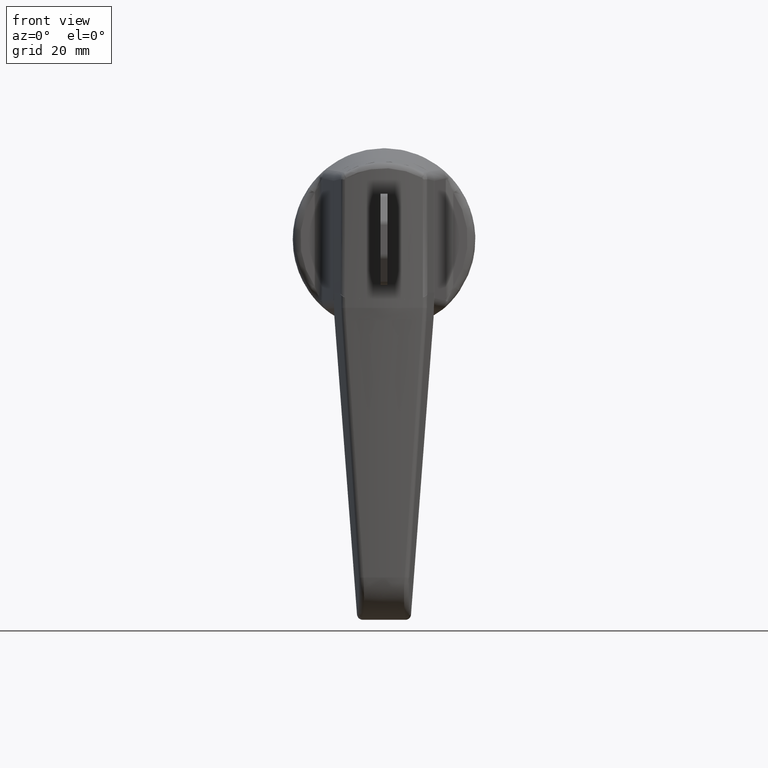
[diagram: clean part render]
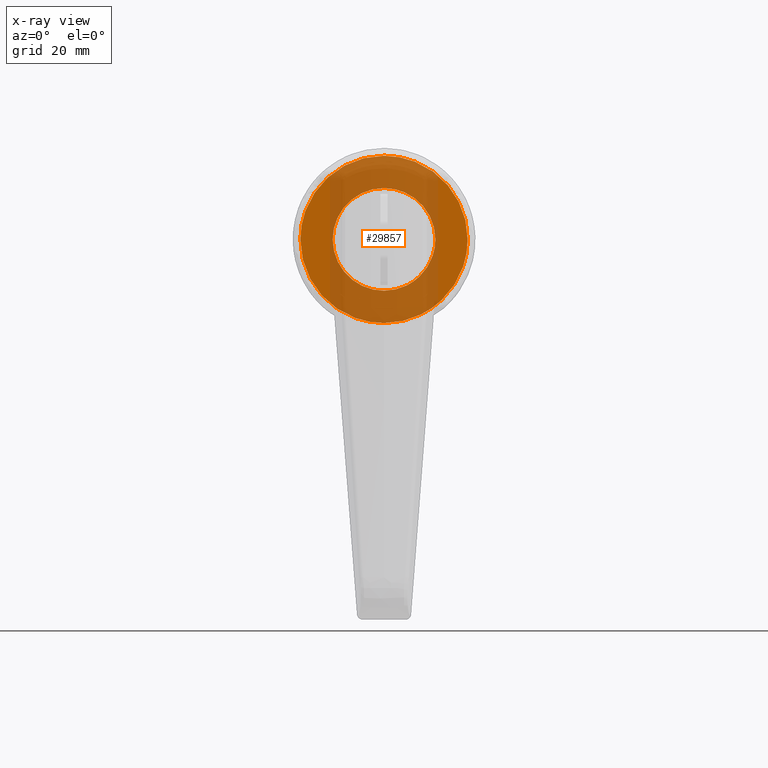
[diagram: x-ray — body ghosted, one internal face saturated and labeled with its STEP entity id]
A machine part, front view, then the same camera in x-ray: the body is ghosted and one INTERNAL B-rep face — a face not visible from any outside direction — is saturated and labeled: STEP entity #29857.
In plain terms, the highlighted face is a freeform B-spline surface patch.
Its self-contained STEP definition (entity closure, byte-faithful):
#28170=CARTESIAN_POINT('',(-4.999999999995118,-10.308001450920090,8.717517765070534));
#28171=VERTEX_POINT('',#28170);
#28172=CARTESIAN_POINT('',(-5.0,0.0,13.500000000000000));
#28173=VERTEX_POINT('',#28172);
#28174=CARTESIAN_POINT('',(-4.999999999995118,-10.308001450920090,8.717517765070534));
#28175=CARTESIAN_POINT('',(-4.999999999995507,-9.479940047894969,9.697375265716811));
#28176=CARTESIAN_POINT('',(-4.999999999996319,-7.772355104515171,11.213040240540851));
#28177=CARTESIAN_POINT('',(-4.999999999997650,-4.985523274028183,12.646579227213319));
#28178=CARTESIAN_POINT('',(-4.999999999998829,-2.443492792131146,13.354061392040411));
#28179=CARTESIAN_POINT('',(-4.999999999999630,-0.794140176486084,13.500061563714439));
#28180=CARTESIAN_POINT('',(-5.0,0.0,13.500000000000000));
#28181=B_SPLINE_CURVE_WITH_KNOTS('',3,(#28174,#28175,#28176,#28177,#28178,#28179,#28180),.UNSPECIFIED.,.F.,.U.,(4,1,1,1,4),(0.000000023157542,3.848559766072583,6.780755182477705,9.346481156571638,11.728912105627090),.UNSPECIFIED.);
#28182=EDGE_CURVE('',#28171,#28173,#28181,.T.);
#28184=CARTESIAN_POINT('',(-5.000000000000001,13.499999999999920,-0.000001486783694));
#28185=VERTEX_POINT('',#28184);
#28186=CARTESIAN_POINT('',(-5.0,0.0,13.500000000000000));
#28187=CARTESIAN_POINT('',(-5.000000000000002,0.717904622635067,13.500048098597590));
#28188=CARTESIAN_POINT('',(-4.999999999999999,2.098469051082379,13.389608811693440));
#28189=CARTESIAN_POINT('',(-5.000000000000007,4.253492004073643,12.877898554849370));
#28190=CARTESIAN_POINT('',(-4.999999999999988,6.042157514836424,12.124102704209591));
#28191=CARTESIAN_POINT('',(-4.999999999999989,7.939133741442965,10.987126754368781));
#28192=CARTESIAN_POINT('',(-5.000000000000101,9.561891223117515,9.638686211867951));
#28193=CARTESIAN_POINT('',(-4.999999999999901,10.978051960687401,7.934269610430841));
#28194=CARTESIAN_POINT('',(-5.000000000000103,12.110017139458430,6.097248347913426));
#28195=CARTESIAN_POINT('',(-4.999999999999904,13.172124417360950,3.534039151447745));
#28196=CARTESIAN_POINT('',(-4.999999999999979,13.500477349040910,1.325401267955049));
#28197=CARTESIAN_POINT('',(-5.000000000000001,13.499999999999920,-0.000001486783694));
#28198=B_SPLINE_CURVE_WITH_KNOTS('',3,(#28186,#28187,#28188,#28189,#28190,#28191,#28192,#28193,#28194,#28195,#28196,#28197),.UNSPECIFIED.,.F.,.U.,(4,1,1,1,1,1,1,1,1,4),(0.000000109244738,2.153719731788129,4.141770372332278,6.626856135096006,7.952238670526615,10.768582151670740,12.922327198265240,14.579029596223840,17.229796913356491,21.205884306797682),.UNSPECIFIED.);
#28199=EDGE_CURVE('',#28173,#28185,#28198,.T.);
#28201=CARTESIAN_POINT('',(-5.0,0.0,-13.500000000000000));
#28202=VERTEX_POINT('',#28201);
#28203=CARTESIAN_POINT('',(-5.000000000000001,13.499999999999920,-0.000001486783694));
#28204=CARTESIAN_POINT('',(-4.999999999999997,13.500190174429870,-1.049257759111788));
#28205=CARTESIAN_POINT('',(-5.000000000000007,13.267082409375639,-3.037206207642055));
#28206=CARTESIAN_POINT('',(-4.999999999999996,12.421376545080690,-5.447263372304269));
#28207=CARTESIAN_POINT('',(-5.000000000000029,11.354124251057341,-7.386044841231694));
#28208=CARTESIAN_POINT('',(-4.999999999999984,9.956799689575059,-9.246537610193380));
#28209=CARTESIAN_POINT('',(-5.000000000000011,8.051289983351275,-10.952419928814990));
#28210=CARTESIAN_POINT('',(-5.0,5.896211649219463,-12.208169181442750));
#28211=CARTESIAN_POINT('',(-5.000000000000006,3.313101826811167,-13.204760780846120));
#28212=CARTESIAN_POINT('',(-4.999999999999988,1.325440985962088,-13.500631551693671));
#28213=CARTESIAN_POINT('',(-5.0,0.0,-13.500000000000000));
#28214=B_SPLINE_CURVE_WITH_KNOTS('',3,(#28203,#28204,#28205,#28206,#28207,#28208,#28209,#28210,#28211,#28212,#28213),.UNSPECIFIED.,.F.,.U.,(4,1,1,1,1,1,1,1,4),(0.000000109758620,3.147743659835911,5.964162230946947,7.620892749050295,9.774636513397999,12.922326178381571,15.241719781787999,17.229795551319679,21.205882630835411),.UNSPECIFIED.);
#28215=EDGE_CURVE('',#28185,#28202,#28214,.T.);
#28217=CARTESIAN_POINT('',(-5.000000000000653,-9.292786544492040,-9.792553712718281));
#28218=VERTEX_POINT('',#28217);
#28219=CARTESIAN_POINT('',(-5.0,0.0,-13.500000000000000));
#28220=CARTESIAN_POINT('',(-5.000000000000048,-0.693972237925739,-13.500041673216121));
#28221=CARTESIAN_POINT('',(-5.000000000000149,-2.135296134251103,-13.388632221332330));
#28222=CARTESIAN_POINT('',(-5.000000000000299,-4.061743243567027,-12.922825509300450));
#28223=CARTESIAN_POINT('',(-5.000000000000395,-5.849840953063684,-12.209403776883811));
#28224=CARTESIAN_POINT('',(-5.000000000000568,-7.577925190503486,-11.242574220725629));
#28225=CARTESIAN_POINT('',(-5.000000000000581,-8.712002935283968,-10.343807361132180));
#28226=CARTESIAN_POINT('',(-5.000000000000653,-9.292786544492040,-9.792553712718281));
#28227=B_SPLINE_CURVE_WITH_KNOTS('',3,(#28219,#28220,#28221,#28222,#28223,#28224,#28225,#28226),.UNSPECIFIED.,.F.,.U.,(4,1,1,1,1,4),(0.000000033132880,2.081924481217508,4.324016853560908,5.925489204951191,7.847279050817351,10.249506025355901),.UNSPECIFIED.);
#28228=EDGE_CURVE('',#28202,#28218,#28227,.T.);
#28317=CARTESIAN_POINT('',(-4.999999999999999,-13.499999999999920,0.000001486783502));
#28318=VERTEX_POINT('',#28317);
#28319=CARTESIAN_POINT('',(-4.999999999999999,-13.499999999999920,0.000001486783502));
#28320=CARTESIAN_POINT('',(-4.999999999999345,-13.500344528997349,1.184661623096297));
#28321=CARTESIAN_POINT('',(-4.999999999998353,-13.271143171481780,2.912018278934702));
#28322=CARTESIAN_POINT('',(-4.999999999997161,-12.531996494359200,5.115484258264711));
#28323=CARTESIAN_POINT('',(-4.999999999996081,-11.671898822641360,6.897397412082048));
#28324=CARTESIAN_POINT('',(-4.999999999995513,-10.849928821665200,8.076875373320299));
#28325=CARTESIAN_POINT('',(-4.999999999995118,-10.308001450920090,8.717517765070534));
#28326=B_SPLINE_CURVE_WITH_KNOTS('',3,(#28319,#28320,#28321,#28322,#28323,#28324,#28325),.UNSPECIFIED.,.F.,.U.,(4,1,1,1,4),(0.000000031338162,3.553866245645839,5.182701162538258,6.959652102902974,9.476974664896382),.UNSPECIFIED.);
#28327=EDGE_CURVE('',#28318,#28171,#28326,.T.);
#28353=CARTESIAN_POINT('',(-5.000000000000653,-9.292786544492040,-9.792553712718281));
#28354=CARTESIAN_POINT('',(-5.000000000000617,-9.913748268382649,-9.203415612794377));
#28355=CARTESIAN_POINT('',(-5.000000000000515,-10.930060916005230,-8.036138675622349));
#28356=CARTESIAN_POINT('',(-5.000000000000456,-11.968902286897810,-6.323575043492045));
#28357=CARTESIAN_POINT('',(-5.000000000000259,-12.804872425548830,-4.444131320134067));
#28358=CARTESIAN_POINT('',(-5.000000000000206,-13.363344345296850,-2.396710452830455));
#28359=CARTESIAN_POINT('',(-5.000000000000010,-13.500030692892381,-0.741826551003268));
#28360=CARTESIAN_POINT('',(-4.999999999999999,-13.499999999999920,0.000001486783502));
#28361=B_SPLINE_CURVE_WITH_KNOTS('',3,(#28353,#28354,#28355,#28356,#28357,#28358,#28359,#28360),.UNSPECIFIED.,.F.,.U.,(4,1,1,1,1,4),(0.000000030352931,2.567900637519596,4.622245873652382,5.991742704544413,8.730870843725704,10.956379082048811),.UNSPECIFIED.);
#28362=EDGE_CURVE('',#28218,#28318,#28361,.T.);
#29191=CARTESIAN_POINT('',(-5.000000000015995,-16.798224536790059,14.206325283614341));
#29192=VERTEX_POINT('',#29191);
#29193=CARTESIAN_POINT('',(-5.0,0.0,22.0));
#29194=VERTEX_POINT('',#29193);
#29195=CARTESIAN_POINT('',(-5.000000000015995,-16.798224536790059,14.206325283614341));
#29196=CARTESIAN_POINT('',(-5.000000000014925,-15.673538032549279,15.536836415290461));
#29197=CARTESIAN_POINT('',(-5.000000000013034,-13.692585173127281,17.381429145477700));
#29198=CARTESIAN_POINT('',(-5.000000000009885,-10.368204413923371,19.497003680360930));
#29199=CARTESIAN_POINT('',(-5.000000000007247,-7.628334195296387,20.712152170109711));
#29200=CARTESIAN_POINT('',(-5.000000000003901,-4.081420990735468,21.725484485555690));
#29201=CARTESIAN_POINT('',(-5.000000000001544,-1.642620138369981,22.000339266057029));
#29202=CARTESIAN_POINT('',(-5.0,0.0,22.0));
#29203=B_SPLINE_CURVE_WITH_KNOTS('',3,(#29195,#29196,#29197,#29198,#29199,#29200,#29201,#29202),.UNSPECIFIED.,.F.,.U.,(4,1,1,1,1,4),(0.000000036304115,5.226397198481813,8.063584447042761,11.796714507927479,14.185927792057161,19.113672562256781),.UNSPECIFIED.);
#29204=EDGE_CURVE('',#29192,#29194,#29203,.T.);
#29273=CARTESIAN_POINT('',(-4.999999999980656,-15.143800225430811,-15.958235765727640));
#29274=VERTEX_POINT('',#29273);
#29280=CARTESIAN_POINT('',(-5.0,0.0,-22.0));
#29281=VERTEX_POINT('',#29280);
#29282=CARTESIAN_POINT('',(-5.0,0.0,-22.0));
#29283=CARTESIAN_POINT('',(-4.999999999998061,-1.522414106867353,-22.000229874552719));
#29284=CARTESIAN_POINT('',(-4.999999999995038,-3.871139351397031,-21.755170103664501));
#29285=CARTESIAN_POINT('',(-4.999999999990878,-7.151600032012739,-20.868567144653280));
#29286=CARTESIAN_POINT('',(-4.999999999987562,-9.731330887884379,-19.803737865554080));
#29287=CARTESIAN_POINT('',(-4.999999999984065,-12.522122171549650,-18.187500286859759));
#29288=CARTESIAN_POINT('',(-4.999999999981746,-14.228874935978860,-16.826616018443289));
#29289=CARTESIAN_POINT('',(-4.999999999980656,-15.143800225430811,-15.958235765727640));
#29290=B_SPLINE_CURVE_WITH_KNOTS('',3,(#29282,#29283,#29284,#29285,#29286,#29287,#29288,#29289),.UNSPECIFIED.,.F.,.U.,(4,1,1,1,1,4),(0.000000025316591,4.567179416416733,7.046517816550843,10.178270198738449,12.918591981544489,16.702825155571681),.UNSPECIFIED.);
#29291=EDGE_CURVE('',#29281,#29274,#29290,.T.);
#29293=CARTESIAN_POINT('',(-5.0,21.999999999999869,-0.000002364850000));
#29294=VERTEX_POINT('',#29293);
#29295=CARTESIAN_POINT('',(-5.0,21.999999999999869,-0.000002364850000));
#29296=CARTESIAN_POINT('',(-5.000000000000011,22.000325946183910,-1.619907195867686));
#29297=CARTESIAN_POINT('',(-4.999999999999983,21.700386739762870,-4.319565528618827));
#29298=CARTESIAN_POINT('',(-5.000000000000012,20.704923829493030,-7.600937226879672));
#29299=CARTESIAN_POINT('',(-5.000000000000011,19.500005885621409,-10.319260161190369));
#29300=CARTESIAN_POINT('',(-4.999999999999989,18.116817974746489,-12.595151601813519));
#29301=CARTESIAN_POINT('',(-5.000000000000012,16.223211175978001,-14.946308940399071));
#29302=CARTESIAN_POINT('',(-5.000000000000016,14.339052320598720,-16.762319949218529));
#29303=CARTESIAN_POINT('',(-5.000000000000019,11.811497969820531,-18.649040452927210));
#29304=CARTESIAN_POINT('',(-4.999999999999867,9.195043796862375,-20.078653644725851));
#29305=CARTESIAN_POINT('',(-5.000000000000097,6.018560999618813,-21.237217980828820));
#29306=CARTESIAN_POINT('',(-4.999999999999909,3.059764593926690,-21.863600878922590));
#29307=CARTESIAN_POINT('',(-5.000000000000080,0.944914850422213,-22.000020943143841));
#29308=CARTESIAN_POINT('',(-5.0,0.0,-22.0));
#29309=B_SPLINE_CURVE_WITH_KNOTS('',3,(#29295,#29296,#29297,#29298,#29299,#29300,#29301,#29302,#29303,#29304,#29305,#29306,#29307,#29308),.UNSPECIFIED.,.F.,.U.,(4,1,1,1,1,1,1,1,1,1,1,4),(0.000000106731584,4.859630767354208,8.099428609028326,10.259288982334780,13.769063801868381,16.063877855440449,19.303606414900401,21.598447877757430,25.513206101560431,28.213036822346091,31.722818477509460,34.557572067338441),.UNSPECIFIED.);
#29310=EDGE_CURVE('',#29294,#29281,#29309,.T.);
#29312=CARTESIAN_POINT('',(-5.0,0.0,22.0));
#29313=CARTESIAN_POINT('',(-5.000000000000003,1.034912071150582,22.000034245935399));
#29314=CARTESIAN_POINT('',(-4.999999999999996,3.239739357738768,21.844162758961179));
#29315=CARTESIAN_POINT('',(-4.999999999999981,6.895401393378288,21.023447659028498));
#29316=CARTESIAN_POINT('',(-5.000000000000088,10.554709622305820,19.454898104808098));
#29317=CARTESIAN_POINT('',(-4.999999999999879,13.808157260968921,17.251770862496858));
#29318=CARTESIAN_POINT('',(-5.000000000000095,16.069933946231242,15.111509797226519));
#29319=CARTESIAN_POINT('',(-4.999999999999950,17.984799737503369,12.778241609486241));
#29320=CARTESIAN_POINT('',(-5.000000000000008,19.347997694869360,10.596055675765180));
#29321=CARTESIAN_POINT('',(-5.000000000000018,20.537597751033939,8.019610328666078));
#29322=CARTESIAN_POINT('',(-4.999999999999966,21.641219347998032,4.679437066357273));
#29323=CARTESIAN_POINT('',(-5.000000000000024,22.000552794727209,1.844923234875254));
#29324=CARTESIAN_POINT('',(-5.0,21.999999999999869,-0.000002364850000));
#29325=B_SPLINE_CURVE_WITH_KNOTS('',3,(#29312,#29313,#29314,#29315,#29316,#29317,#29318,#29319,#29320,#29321,#29322,#29323,#29324),.UNSPECIFIED.,.F.,.U.,(4,1,1,1,1,1,1,1,1,1,4),(0.000000106525604,3.104740009536549,6.614521500190229,11.204235305843421,14.983995052292810,18.358653874139758,20.518542947297590,24.028310835344861,26.053171839796740,29.022982004454501,34.557574733079669),.UNSPECIFIED.);
#29326=EDGE_CURVE('',#29194,#29294,#29325,.T.);
#29345=CARTESIAN_POINT('',(-5.000000000000001,-21.999999999999879,0.000002364849357));
#29346=VERTEX_POINT('',#29345);
#29347=CARTESIAN_POINT('',(-5.000000000000001,-21.999999999999879,0.000002364849357));
#29348=CARTESIAN_POINT('',(-5.000000000001259,-22.000069452242968,1.126119712687449));
#29349=CARTESIAN_POINT('',(-5.000000000003728,-21.832890806083160,3.297904601211507));
#29350=CARTESIAN_POINT('',(-5.000000000006978,-21.167607778006019,6.206516355283474));
#29351=CARTESIAN_POINT('',(-5.000000000010056,-20.170468656812059,8.929801902606771));
#29352=CARTESIAN_POINT('',(-5.000000000013046,-18.800208142424609,11.580276911872360));
#29353=CARTESIAN_POINT('',(-5.000000000015019,-17.525462459370470,13.346518440285090));
#29354=CARTESIAN_POINT('',(-5.000000000015995,-16.798224536790059,14.206325283614341));
#29355=B_SPLINE_CURVE_WITH_KNOTS('',3,(#29347,#29348,#29349,#29350,#29351,#29352,#29353,#29354),.UNSPECIFIED.,.F.,.U.,(4,1,1,1,1,4),(8.463422E-009,3.378362082734983,6.515430747332021,8.928528087680427,12.065596752252230,15.443958826541261),.UNSPECIFIED.);
#29356=EDGE_CURVE('',#29346,#29192,#29355,.T.);
#29358=CARTESIAN_POINT('',(-4.999999999980656,-15.143800225430811,-15.958235765727640));
#29359=CARTESIAN_POINT('',(-4.999999999981625,-15.987014408729699,-15.158116212623559));
#29360=CARTESIAN_POINT('',(-4.999999999984025,-17.764641865279991,-13.181091158275679));
#29361=CARTESIAN_POINT('',(-4.999999999987738,-19.650604706924220,-10.116230923751560));
#29362=CARTESIAN_POINT('',(-4.999999999991932,-21.056416099711360,-6.664236126008900));
#29363=CARTESIAN_POINT('',(-4.999999999995803,-21.826845572205521,-3.440765618588950));
#29364=CARTESIAN_POINT('',(-4.999999999998749,-22.000032609270470,-1.069418244993458));
#29365=CARTESIAN_POINT('',(-5.000000000000001,-21.999999999999879,0.000002364849357));
#29366=B_SPLINE_CURVE_WITH_KNOTS('',3,(#29358,#29359,#29360,#29361,#29362,#29363,#29364,#29365),.UNSPECIFIED.,.F.,.U.,(4,1,1,1,1,4),(0.000000029338469,3.487256018853831,7.950946814909635,10.740729583153311,14.646476810117550,17.854750326482311),.UNSPECIFIED.);
#29367=EDGE_CURVE('',#29274,#29346,#29366,.T.);
#29836=CARTESIAN_POINT('',(-5.0,-24.197799914719329,-24.197799914719461));
#29837=CARTESIAN_POINT('',(-5.0,-24.197799914719329,24.197801094891432));
#29838=CARTESIAN_POINT('',(-5.0,24.197801094891290,-24.197799914719461));
#29839=CARTESIAN_POINT('',(-5.0,24.197801094891290,24.197801094891432));
#29840=B_SPLINE_SURFACE_WITH_KNOTS('',1,1,((#29836,#29838),(#29837,#29839)),.UNSPECIFIED.,.F.,.F.,.U.,(2,2),(2,2),(0.0,48.395601009610893),(0.0,48.395601009610623),.UNSPECIFIED.);
#29841=ORIENTED_EDGE('',*,*,#29326,.T.);
#29842=ORIENTED_EDGE('',*,*,#29310,.T.);
#29843=ORIENTED_EDGE('',*,*,#29291,.T.);
#29844=ORIENTED_EDGE('',*,*,#29367,.T.);
#29845=ORIENTED_EDGE('',*,*,#29356,.T.);
#29846=ORIENTED_EDGE('',*,*,#29204,.T.);
#29847=EDGE_LOOP('',(#29841,#29842,#29843,#29844,#29845,#29846));
#29848=FACE_OUTER_BOUND('',#29847,.T.);
#29849=ORIENTED_EDGE('',*,*,#28199,.F.);
#29850=ORIENTED_EDGE('',*,*,#28182,.F.);
#29851=ORIENTED_EDGE('',*,*,#28327,.F.);
#29852=ORIENTED_EDGE('',*,*,#28362,.F.);
#29853=ORIENTED_EDGE('',*,*,#28228,.F.);
#29854=ORIENTED_EDGE('',*,*,#28215,.F.);
#29855=EDGE_LOOP('',(#29849,#29850,#29851,#29852,#29853,#29854));
#29856=FACE_BOUND('',#29855,.T.);
#29857=ADVANCED_FACE('',(#29848,#29856),#29840,.T.);